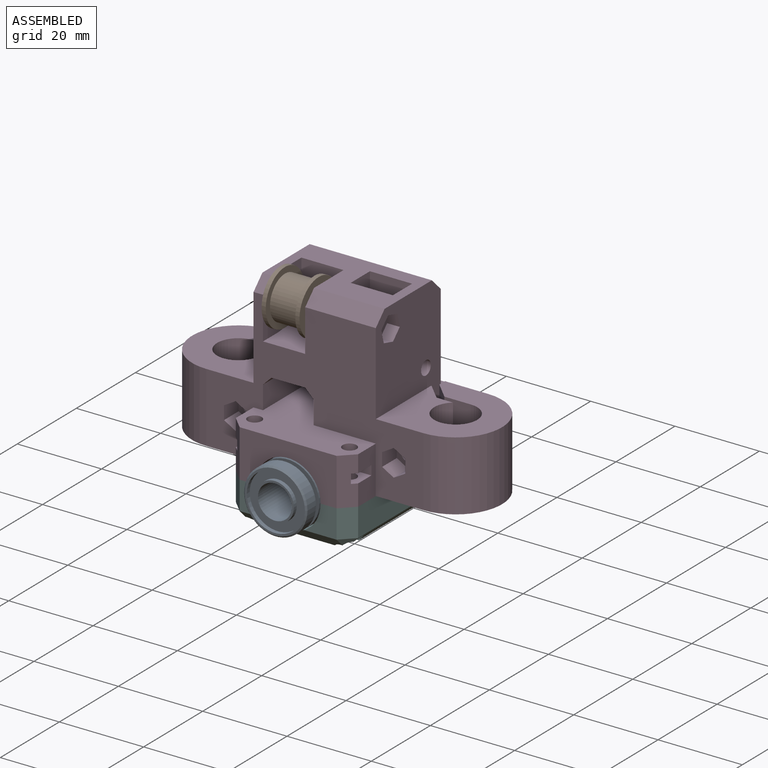
[diagram: assembled view]
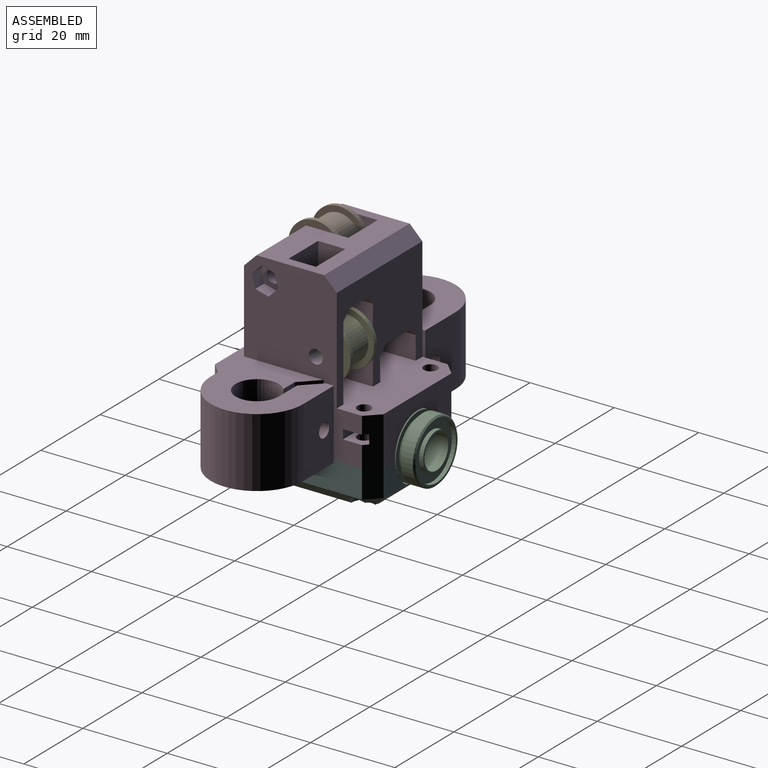
[diagram: assembled view, second angle]
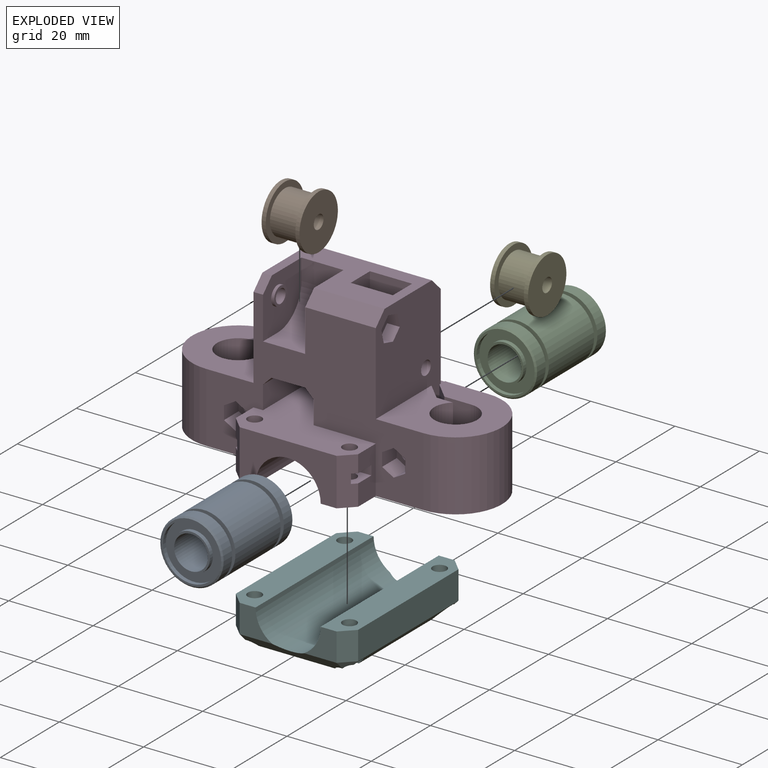
[diagram: exploded view]
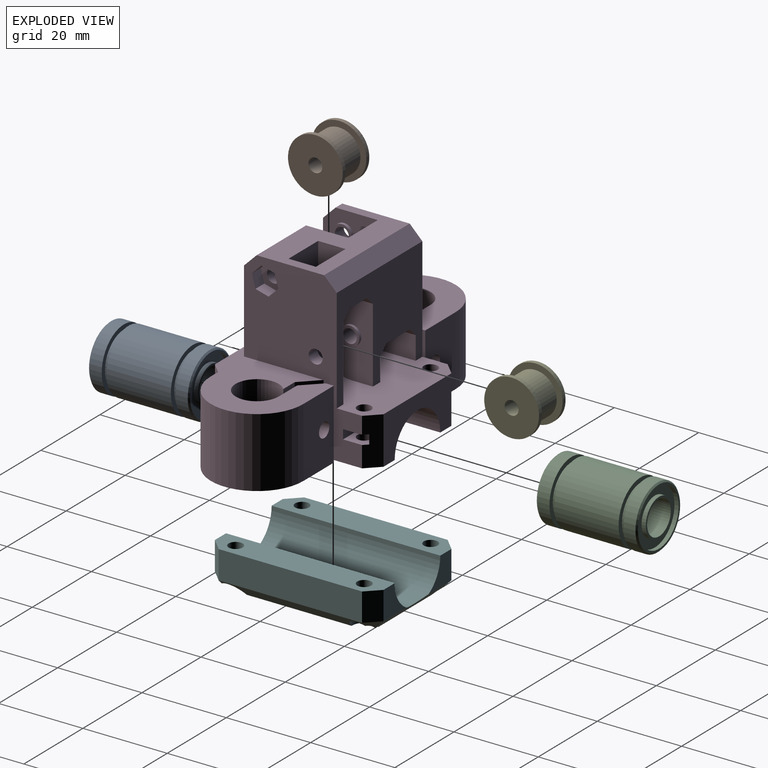
[diagram: exploded view, second angle]
ASSEMBLY  parts=6 mates=5
PART A: 22 faces, bbox 24x15x15 mm
  f0: cone r=7.5mm half-angle=45deg, axis (-1,0,0), area 22.8mm2, adj f1,f21
  f1: cylinder r=7.5mm len=15mm, axis (-1,0,0), area 136.7mm2, adj f0,f2
  f2: plane 15x15mm, normal (-1,0,0), area 48mm2, adj f1,f3
  f3: cylinder r=6.4mm len=12.8mm, axis (-1,0,0), area 44.2mm2, adj f2,f4
  f4: plane 15x15mm, normal (1,0,0), area 48mm2, adj f3,f5
  f5: cylinder r=7.5mm len=15.3mm, axis (-1,0,0), area 721mm2, adj f4,f6
  f6: plane 15x15mm, normal (-1,0,0), area 48mm2, adj f5,f7
  f7: cylinder r=6.4mm len=12.8mm, axis (-1,0,0), area 44.2mm2, adj f6,f8
  f8: plane 15x15mm, normal (1,0,0), area 48mm2, adj f7,f9
  f9: cylinder r=7.5mm len=15mm, axis (-1,0,0), area 136.7mm2, adj f8,f10
  f10: cone r=7.5mm half-angle=45deg, axis (1,0,0), area 22.8mm2, adj f9,f11
  f11: plane 14.3x14.3mm, normal (-1,0,0), area 21.7mm2, adj f10,f12
  f12: cylinder r=6.65mm len=13.3mm, axis (-1,0,0), area 41.8mm2, adj f11,f13
  f13: plane 13.3x13.3mm, normal (-1,0,0), area 75.3mm2, adj f12,f14
  f14: cylinder r=4.5mm len=9mm, axis (-1,0,0), area 28.3mm2, adj f13,f15
  f15: plane 9x9mm, normal (-1,0,0), area 13.4mm2, adj f14,f16
  f16: cylinder r=4mm len=24mm, axis (-1,0,0), area 603.2mm2, adj f15,f17
  f17: plane 9x9mm, normal (1,0,0), area 13.4mm2, adj f16,f18
  f18: cylinder r=4.5mm len=9mm, axis (-1,0,0), area 28.3mm2, adj f17,f19
  f19: plane 13.3x13.3mm, normal (1,0,0), area 75.3mm2, adj f18,f20
  f20: cylinder r=6.65mm len=13.3mm, axis (-1,0,0), area 41.8mm2, adj f19,f21
  f21: plane 14.3x14.3mm, normal (1,0,0), area 21.7mm2, adj f0,f20
PART B: 8 faces, bbox 13x13x9 mm
  f0: cylinder r=6.5mm len=13mm, axis (0,0,1), area 40.8mm2, adj f2,f3
  f1: cylinder r=1.65mm len=9mm, axis (0,0,1), area 93.3mm2, adj f2,f6
  f2: plane 13x13mm, normal (0,0,-1), area 124.2mm2, adj f0,f1
  f3: plane 13x13mm, normal (0,0,1), area 51.2mm2, adj f0,f4
  f4: cylinder r=5.09mm len=10.19mm, axis (0,0,-1), area 224mm2, adj f3,f5
  f5: plane 13x13mm, normal (0,0,-1), area 51.2mm2, adj f4,f7
  f6: plane 13x13mm, normal (0,0,1), area 124.2mm2, adj f1,f7
  f7: cylinder r=6.5mm len=13mm, axis (0,0,-1), area 40.8mm2, adj f5,f6
PART C: same geometry as A
PART D: 132 faces, bbox 40x73.5x39 mm
  f0: cylinder r=1.75mm len=5.9mm, axis (1,0,0), area 54.1mm2, adj f3,f4,f6
  f1: plane 6.35x5.5mm, normal (-1,0,0), area 16.6mm2, adj f7,f8,f9,f10,f11,f12,f14
  f2: cylinder r=5.1mm len=16.5mm, axis (0,0,-1), area 468.5mm2, adj f3,f15,f18,f19
  f3: plane 16.5x6.25mm, normal (-1,0,0), area 100.9mm2, adj f0,f2,f4,f18,f19
  f4: plane 16.5x4mm, normal (-0.71,-0.71,0), area 82.9mm2, adj f0,f3,f5,f18,f19
  f5: plane 16.5x1.9mm, normal (0,-1,0), area 31.3mm2, adj f4,f6,f18,f19
  f6: plane 16.5x10.25mm, normal (1,0,0), area 159.5mm2, adj f0,f5,f13,f18,f19
  f7: plane 4.95x2.75mm, normal (0,0.5,-0.87), area 15.7mm2, adj f1,f8,f12,f17
  f8: plane 4.95x2.75mm, normal (0,-0.5,-0.87), area 15.7mm2, adj f1,f7,f9,f17
  f9: plane 4.95x3.18mm, normal (0,-1,0), area 15.7mm2, adj f1,f8,f10,f17
  f10: plane 4.95x2.75mm, normal (0,-0.5,0.87), area 15.7mm2, adj f1,f9,f11,f17
  f11: plane 4.95x2.75mm, normal (0,0.5,0.87), area 15.7mm2, adj f1,f10,f12,f17
  f12: plane 4.95x3.18mm, normal (0,1,0), area 15.7mm2, adj f1,f7,f11,f17
  f13: cylinder r=11mm len=22mm, axis (0,0,1), area 570.2mm2, adj f6,f17,f18,f19
  f14: cylinder r=1.75mm len=11.41mm, axis (1,0,0), area 113.7mm2, adj f1,f15,f16
  f15: plane 16.5x3.91mm, normal (1,0,0), area 58.8mm2, adj f2,f14,f16,f18,f19
  f16: plane 16.5x4mm, normal (0.71,0.71,0), area 87.8mm2, adj f14,f15,f18,f19,f21
  f17: plane 51.5x36mm, normal (-1,0,0), area 850.6mm2, adj f7,f8,f9,f10,f11,f12,f13,f18
  f18: plane 40x30.03mm, normal (0,0,-1), area 584.6mm2, adj f2,f3,f4,f5,f6,f13,f15,f16
  f19: plane 22.25x22mm, normal (0,0,1), area 338.8mm2, adj f2,f3,f4,f5,f6,f13,f15,f16
  f20: plane 11.25x6mm, normal (0,1,0), area 57.6mm2, adj f17,f18,f32,f39,f95,f96,f99
  f21: plane 39x28mm, normal (0,1,0), area 559.9mm2, adj f16,f17,f18,f19,f23,f33,f39,f42
  f22: plane 39x28mm, normal (0,-1,0), area 559.9mm2, adj f17,f23,f24,f36,f39,f44,f55,f56
  f23: plane 29x24.75mm, normal (1,0,0), area 438.3mm2, adj f21,f22,f39,f49,f53,f54,f55,f59
  f24: plane 40x30.03mm, normal (0,0,-1), area 584.6mm2, adj f17,f22,f27,f35,f36,f37,f38,f40
  f25: cylinder r=1.65mm len=14.45mm, axis (0,-1,0), area 149.8mm2, adj f68,f113
  f26: cylinder r=1.65mm len=14.45mm, axis (0,1,0), area 149.8mm2, adj f46,f106
  f27: plane 11.25x6mm, normal (0,-1,0), area 57.6mm2, adj f17,f24,f37,f39,f80,f81,f83
  f28: cylinder r=1.65mm len=4.05mm, axis (0,0,1), area 42mm2, adj f39,f90
  f29: cylinder r=1.65mm len=5mm, axis (0,0,1), area 51.8mm2, adj f18,f91
  f30: cylinder r=1.65mm len=4.05mm, axis (0,0,1), area 42mm2, adj f39,f95
  f31: cylinder r=1.65mm len=5mm, axis (0,0,1), area 51.8mm2, adj f18,f96
  f32: plane 11.25x3mm, normal (-0.71,0.71,0), area 44.6mm2, adj f18,f20,f39,f50,f95,f96,f97
  f33: plane 11.25x3mm, normal (0.71,0.71,0), area 44.6mm2, adj f18,f21,f39,f52,f90,f91,f93
  f34: cylinder r=1.65mm len=4.05mm, axis (0,0,1), area 42mm2, adj f39,f80
  f35: cylinder r=1.65mm len=5mm, axis (0,0,1), area 51.8mm2, adj f24,f85
  f36: plane 11.25x3mm, normal (0.71,-0.71,0), area 44.6mm2, adj f22,f24,f39,f52,f85,f86,f88
  f37: plane 11.25x3mm, normal (-0.71,-0.71,0), area 44.6mm2, adj f24,f27,f39,f50,f80,f81,f84
  f38: cylinder r=7.73mm len=19.5mm, axis (-1,0,0), area 473.2mm2, adj f18,f24,f52,f78
  f39: plane 40x29mm, normal (0,0,1), area 783.8mm2, adj f17,f20,f21,f22,f23,f27,f28,f30
  f40: cylinder r=1.65mm len=5mm, axis (0,0,1), area 51.8mm2, adj f24,f81
  f41: cylinder r=1.65mm len=4.05mm, axis (0,0,1), area 42mm2, adj f39,f86
  f42: cylinder r=1.65mm len=3.3mm, axis (0,-1,0), area 30.6mm2, adj f21,f43
  f43: plane 4.5x4.5mm, normal (0,-1,0), area 7.4mm2, adj f42,f67
  f44: cylinder r=1.65mm len=3.3mm, axis (0,1,0), area 30.6mm2, adj f22,f45
  f45: plane 4.5x4.5mm, normal (0,1,0), area 7.4mm2, adj f44,f47
  f46: plane 4.5x4.5mm, normal (0,-1,0), area 7.4mm2, adj f26,f48
  f47: cylinder r=2.25mm len=4.5mm, axis (0,-1,0), area 9.9mm2, adj f45,f49
  f48: cylinder r=2.25mm len=4.5mm, axis (0,-1,0), area 9.9mm2, adj f46,f59
  f49: plane 27.75x13mm, normal (0,1,0), area 266.2mm2, adj f23,f39,f47,f56,f57,f58,f62,f63
  f50: plane 23x11.25mm, normal (-1,0,0), area 165mm2, adj f18,f24,f32,f37,f39,f51
  f51: cylinder r=7.73mm len=19.5mm, axis (-1,0,0), area 473.2mm2, adj f18,f24,f50,f79
  f52: plane 23x11.25mm, normal (1,0,0), area 165mm2, adj f18,f24,f33,f36,f38,f39
  f53: plane 22x5.5mm, normal (0,1,0), area 121mm2, adj f17,f23,f39,f54
  f54: plane 22x2mm, normal (0,0.71,-0.71), area 62.2mm2, adj f17,f23,f53,f76
  f55: plane 29x3mm, normal (0.71,0,0.71), area 123mm2, adj f21,f22,f23,f56
  f56: plane 29x16mm, normal (0,0,1), area 298.9mm2, adj f21,f22,f49,f55,f57,f59,f62,f64
  f57: plane 19.75x10mm, normal (1,0,0), area 197.5mm2, adj f49,f56,f58,f59
  f58: cylinder r=8mm len=10mm, axis (0,-1,0), area 125.7mm2, adj f39,f49,f57,f59
  f59: plane 27.75x13mm, normal (0,-1,0), area 266.2mm2, adj f23,f39,f48,f56,f57,f58,f60,f62
  f60: plane 6.49x2mm, normal (0,-0.71,-0.71), area 18.4mm2, adj f23,f59,f61,f62
  f61: plane 6.49x6mm, normal (0,0,-1), area 39mm2, adj f23,f60,f62,f63
  f62: plane 10x10mm, normal (-1,0,0), area 84mm2, adj f49,f56,f59,f60,f61,f63
  f63: plane 6.49x2mm, normal (0,0.71,-0.71), area 18.4mm2, adj f23,f49,f61,f62
  f64: plane 3x3mm, normal (-0.71,0,0.71), area 9.5mm2, adj f17,f21,f56,f65
  f65: plane 13x13mm, normal (0,-1,0), area 134.9mm2, adj f17,f56,f64,f67,f71,f72,f73
  f66: cylinder r=2.25mm len=4.5mm, axis (0,1,0), area 9.9mm2, adj f68,f69
  f67: cylinder r=2.25mm len=4.5mm, axis (0,1,0), area 9.9mm2, adj f43,f65
  f68: plane 4.5x4.5mm, normal (0,1,0), area 7.4mm2, adj f25,f66
  f69: plane 13x13mm, normal (0,1,0), area 134.9mm2, adj f17,f56,f66,f70,f71,f72,f73
  f70: plane 16.75x3mm, normal (-0.71,0,0.71), area 71.1mm2, adj f17,f22,f56,f69
  f71: plane 10x5mm, normal (0,0,1), area 50mm2, adj f17,f65,f69,f72
  f72: cylinder r=8mm len=10mm, axis (0,1,0), area 125.7mm2, adj f65,f69,f71,f73
  f73: plane 10x5mm, normal (-1,0,0), area 50mm2, adj f56,f65,f69,f72
  f74: plane 22x5.5mm, normal (0,-1,0), area 121mm2, adj f17,f23,f39,f75
  f75: plane 22x2mm, normal (0,-0.71,-0.71), area 62.2mm2, adj f17,f23,f74,f76
  f76: plane 22x8mm, normal (0,0,-1), area 176mm2, adj f17,f23,f54,f75
  f77: cylinder r=6.72mm len=13.45mm, axis (-1,0,0), area 21.1mm2, adj f18,f24,f78,f79
  f78: plane 15.45x10.04mm, normal (1,0,0), area 22.7mm2, adj f18,f24,f38,f77
  f79: plane 15.45x10.04mm, normal (-1,0,0), area 22.7mm2, adj f18,f24,f51,f77
  f80: plane 6x5.5mm, normal (0,0,-1), area 23.9mm2, adj f27,f34,f37,f82,f83,f84
  f81: plane 6x5.5mm, normal (0,0,1), area 23.9mm2, adj f27,f37,f40,f82,f83,f84
  f82: plane 5.5x2.2mm, normal (0,-1,0), area 12.1mm2, adj f80,f81,f83,f84
  f83: plane 6x2.2mm, normal (-1,0,0), area 13.2mm2, adj f27,f80,f81,f82
  f84: plane 5x2.2mm, normal (1,0,0), area 11mm2, adj f37,f80,f81,f82
  f85: plane 6x5.5mm, normal (0,0,1), area 23.9mm2, adj f22,f35,f36,f87,f88,f89
  f86: plane 6x5.5mm, normal (0,0,-1), area 23.9mm2, adj f22,f36,f41,f87,f88,f89
  f87: plane 5.5x2.2mm, normal (0,-1,0), area 12.1mm2, adj f85,f86,f88,f89
  f88: plane 5x2.2mm, normal (-1,0,0), area 11mm2, adj f36,f85,f86,f87
  f89: plane 6x2.2mm, normal (1,0,0), area 13.2mm2, adj f22,f85,f86,f87
  f90: plane 6x5.5mm, normal (0,0,-1), area 23.9mm2, adj f21,f28,f33,f92,f93,f94
  f91: plane 6x5.5mm, normal (0,0,1), area 23.9mm2, adj f21,f29,f33,f92,f93,f94
  f92: plane 5.5x2.2mm, normal (0,1,0), area 12.1mm2, adj f90,f91,f93,f94
  f93: plane 5x2.2mm, normal (-1,0,0), area 11mm2, adj f33,f90,f91,f92
  f94: plane 6x2.2mm, normal (1,0,0), area 13.2mm2, adj f21,f90,f91,f92
  f95: plane 6x5.5mm, normal (0,0,-1), area 23.9mm2, adj f20,f30,f32,f97,f98,f99
  f96: plane 6x5.5mm, normal (0,0,1), area 23.9mm2, adj f20,f31,f32,f97,f98,f99
  f97: plane 5x2.2mm, normal (1,0,0), area 11mm2, adj f32,f95,f96,f98
  f98: plane 5.5x2.2mm, normal (0,1,0), area 12.1mm2, adj f95,f96,f97,f99
  f99: plane 6x2.2mm, normal (-1,0,0), area 13.2mm2, adj f20,f95,f96,f98
  f100: plane 3x2.8mm, normal (-0.5,0,-0.87), area 9.7mm2, adj f21,f101,f105,f106
  f101: plane 3.23x3mm, normal (-1,0,0), area 9.7mm2, adj f21,f100,f102,f106
  f102: plane 3x2.8mm, normal (-0.5,0,0.87), area 9.7mm2, adj f21,f101,f103,f106
  f103: plane 3x2.8mm, normal (0.5,0,0.87), area 9.7mm2, adj f21,f102,f104,f106
  f104: plane 3.23x3mm, normal (1,0,0), area 9.7mm2, adj f21,f103,f105,f106
  f105: plane 3x2.8mm, normal (0.5,0,-0.87), area 9.7mm2, adj f21,f100,f104,f106
  f106: plane 6.47x5.6mm, normal (0,1,0), area 18.6mm2, adj f26,f100,f101,f102,f103,f104,f105
  f107: plane 3.12x3mm, normal (-0.26,0,-0.97), area 9.7mm2, adj f22,f108,f112,f113
  f108: plane 3x2.29mm, normal (0.71,0,-0.71), area 9.7mm2, adj f22,f107,f109,f113
  f109: plane 3.12x3mm, normal (0.97,0,0.26), area 9.7mm2, adj f22,f108,f110,f113
  f110: plane 3.12x3mm, normal (0.26,0,0.97), area 9.7mm2, adj f22,f109,f111,f113
  f111: plane 3x2.29mm, normal (-0.71,0,0.71), area 9.7mm2, adj f22,f110,f112,f113
  f112: plane 3.12x3mm, normal (-0.97,0,-0.26), area 9.7mm2, adj f22,f107,f111,f113
  f113: plane 6.25x6.25mm, normal (0,-1,0), area 18.6mm2, adj f25,f107,f108,f109,f110,f111,f112
  f114: cylinder r=1.75mm len=5.9mm, axis (1,0,0), area 54.1mm2, adj f117,f118,f120
  f115: plane 6.35x5.5mm, normal (-1,0,0), area 16.6mm2, adj f121,f122,f123,f124,f125,f126,f128
  f116: cylinder r=5.1mm len=16.5mm, axis (0,0,-1), area 468.5mm2, adj f24,f117,f129,f131
  f117: plane 16.5x6.25mm, normal (-1,0,0), area 100.9mm2, adj f24,f114,f116,f118,f131
  f118: plane 16.5x4mm, normal (-0.71,0.71,0), area 82.9mm2, adj f24,f114,f117,f119,f131
  f119: plane 16.5x1.9mm, normal (0,1,0), area 31.3mm2, adj f24,f118,f120,f131
  f120: plane 16.5x10.25mm, normal (1,0,0), area 159.5mm2, adj f24,f114,f119,f127,f131
  f121: plane 4.95x2.75mm, normal (0,-0.5,-0.87), area 15.7mm2, adj f17,f115,f122,f126
  f122: plane 4.95x2.75mm, normal (0,0.5,-0.87), area 15.7mm2, adj f17,f115,f121,f123
  f123: plane 4.95x3.18mm, normal (0,1,0), area 15.7mm2, adj f17,f115,f122,f124
  f124: plane 4.95x2.75mm, normal (0,0.5,0.87), area 15.7mm2, adj f17,f115,f123,f125
  f125: plane 4.95x2.75mm, normal (0,-0.5,0.87), area 15.7mm2, adj f17,f115,f124,f126
  f126: plane 4.95x3.18mm, normal (0,-1,0), area 15.7mm2, adj f17,f115,f121,f125
  f127: cylinder r=11mm len=22mm, axis (0,0,1), area 570.2mm2, adj f17,f24,f120,f131
  f128: cylinder r=1.75mm len=11.41mm, axis (1,0,0), area 113.7mm2, adj f115,f129,f130
  f129: plane 16.5x3.91mm, normal (1,0,0), area 58.8mm2, adj f24,f116,f128,f130,f131
  f130: plane 16.5x4mm, normal (0.71,-0.71,0), area 87.8mm2, adj f22,f24,f128,f129,f131
  f131: plane 22.25x22mm, normal (0,0,1), area 338.8mm2, adj f17,f22,f116,f117,f118,f119,f120,f127
PART E: same geometry as B
PART F: 35 faces, bbox 40x29x9.7 mm
  f0: plane 34x23mm, normal (0,0,-1), area 734.6mm2, adj f16,f21,f22,f26,f27,f29,f31,f33
  f1: cylinder r=1.65mm len=4.73mm, axis (0,0,-1), area 49mm2, adj f5,f6,f34
  f2: cylinder r=1.65mm len=4.73mm, axis (0,0,-1), area 49mm2, adj f5,f6,f32
  f3: cylinder r=1.65mm len=4.73mm, axis (0,0,-1), area 49mm2, adj f13,f30
  f4: cylinder r=1.65mm len=4.73mm, axis (0,0,-1), area 49mm2, adj f13,f28
  f5: plane 40x3.78mm, normal (0,0,1), area 140.8mm2, adj f1,f2,f6,f9,f10,f12
  f6: plane 40x3mm, normal (0,0,1), area 104.1mm2, adj f1,f2,f5,f11,f17,f23
  f7: plane 7.7x6.73mm, normal (1,0,0), area 33mm2, adj f10,f13,f15,f16
  f8: plane 7.7x6.73mm, normal (-1,0,0), area 33mm2, adj f10,f13,f20,f26
  f9: plane 7.7x6.73mm, normal (1,0,0), area 33mm2, adj f5,f10,f16,f17
  f10: cylinder r=7.73mm len=40mm, axis (-1,0,0), area 960.2mm2, adj f5,f7,f8,f9,f12,f13,f16,f26
  f11: plane 34x6.73mm, normal (0,1,0), area 228.7mm2, adj f6,f17,f22,f23
  f12: plane 7.7x6.73mm, normal (-1,0,0), area 33mm2, adj f5,f10,f23,f26
  f13: plane 40x6.78mm, normal (0,0,1), area 244.9mm2, adj f3,f4,f7,f8,f10,f14,f15,f20
  f14: plane 34x6.73mm, normal (0,-1,0), area 228.7mm2, adj f13,f15,f20,f21
  f15: plane 6.73x3mm, normal (0.71,-0.71,0), area 28.5mm2, adj f7,f13,f14,f18
  f16: plane 23x3mm, normal (0.71,0,-0.71), area 85.1mm2, adj f0,f7,f9,f10,f18,f19,f27,f33
  f17: plane 6.73x3mm, normal (0.71,0.71,0), area 28.5mm2, adj f6,f9,f11,f19
  f18: plane 3x3mm, normal (0.58,-0.58,-0.58), area 5.5mm2, adj f15,f16,f21,f27
  f19: plane 3x3mm, normal (0.58,0.58,-0.58), area 5.5mm2, adj f16,f17,f22,f33
  f20: plane 6.73x3mm, normal (-0.71,-0.71,0), area 28.5mm2, adj f8,f13,f14,f24
  f21: plane 34x3mm, normal (0,-0.71,-0.71), area 117.2mm2, adj f0,f14,f18,f24,f27,f29
  f22: plane 34x3mm, normal (0,0.71,-0.71), area 117.2mm2, adj f0,f11,f19,f25,f31,f33
  f23: plane 6.73x3mm, normal (-0.71,0.71,0), area 28.5mm2, adj f6,f11,f12,f25
  f24: plane 3x3mm, normal (-0.58,-0.58,-0.58), area 5.5mm2, adj f20,f21,f26,f29
  f25: plane 3x3mm, normal (-0.58,0.58,-0.58), area 5.5mm2, adj f22,f23,f26,f31
  f26: plane 23x3mm, normal (-0.71,0,-0.71), area 85.1mm2, adj f0,f8,f10,f12,f24,f25,f29,f31
  f27: cylinder r=2.8mm len=5.6mm, axis (0,0,-1), area 71mm2, adj f0,f16,f18,f21,f28
  f28: plane 5.6x5.6mm, normal (0,0,-1), area 16.1mm2, adj f4,f27
  f29: cylinder r=2.8mm len=5.6mm, axis (0,0,-1), area 71mm2, adj f0,f21,f24,f26,f30
  f30: plane 5.6x5.6mm, normal (0,0,-1), area 16.1mm2, adj f3,f29
  f31: cylinder r=2.8mm len=5.6mm, axis (0,0,-1), area 71mm2, adj f0,f22,f25,f26,f32
  f32: plane 5.6x5.6mm, normal (0,0,-1), area 16.1mm2, adj f2,f31
  f33: cylinder r=2.8mm len=5.6mm, axis (0,0,-1), area 71mm2, adj f0,f16,f19,f22,f34
  f34: plane 5.6x5.6mm, normal (0,0,-1), area 16.1mm2, adj f1,f33
PLACE A rot(axis=(0.58,0.58,0.58),120deg) t=(-177.37,-7.31,26.93)mm
PLACE B rot(axis=(-0.71,0,-0.71),180deg) t=(-187.92,-0.81,60.93)mm
PLACE C rot(axis=(0.58,0.58,0.58),120deg) t=(-177.37,17.69,26.93)mm
PLACE D rot(axis=(0,0,1),90deg) t=(-177.37,5.19,29.18)mm
PLACE E rot(axis=(-0.71,0,-0.71),180deg) t=(-173.42,11.19,47.93)mm
PLACE F rot(axis=(0,0,-1),90deg) t=(-177.37,5.19,29.18)mm
MATE revolute E.f1 <-> D.f26  axis (-1,0,0) through (-174.42,11.19,47.93)mm
MATE fastened A.f0 <-> D.f38  axis (0,1,0) through (-177.37,4.69,26.93)mm
MATE revolute B.f1 <-> D.f25  axis (-1,0,0) through (-188.92,-0.81,60.93)mm
MATE fastened C.f0 <-> D.f38  axis (0,-1,0) through (-177.37,5.69,26.93)mm
MATE fastened D.f30 <-> F.f4  axis (0,0,-1) through (-188.62,-10.06,26.93)mm
